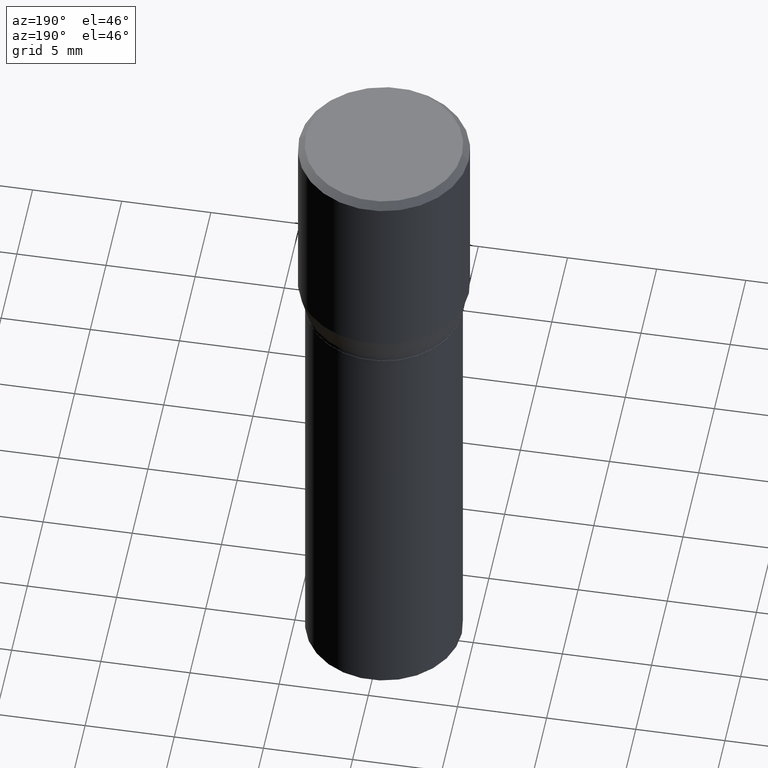
[diagram: clean part render]
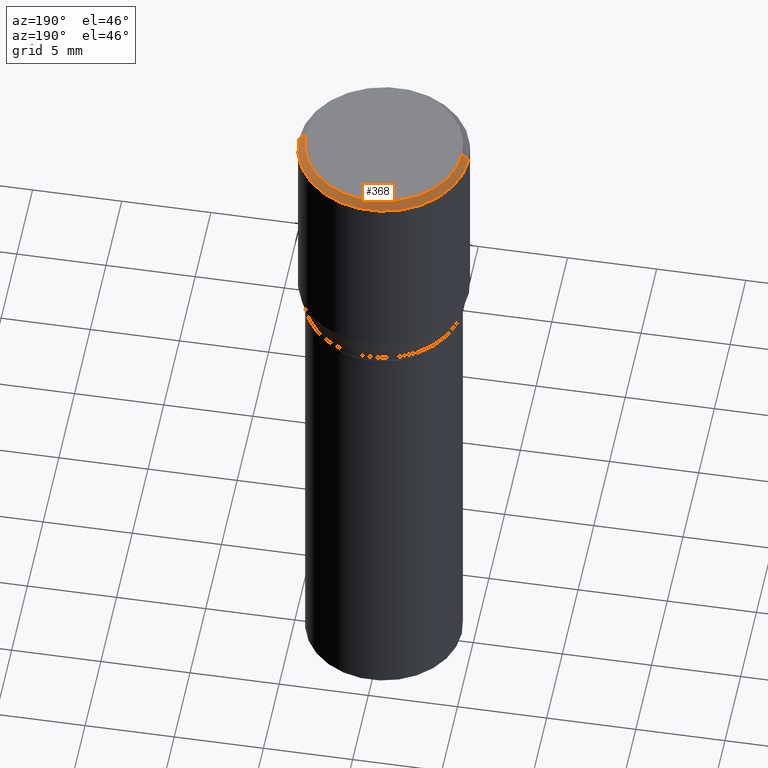
[diagram: same view with one face highlighted and labeled with its STEP entity id]
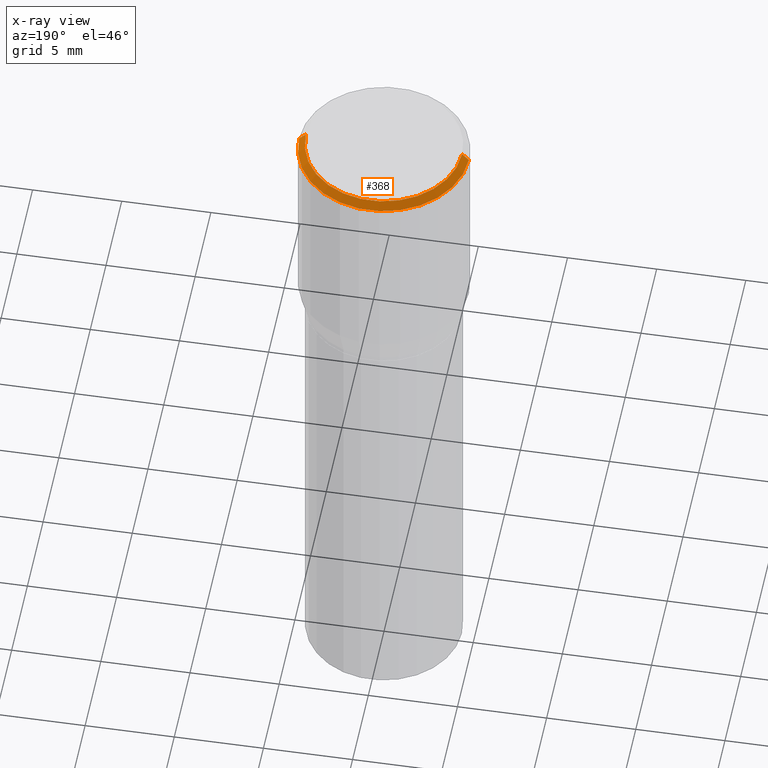
[diagram: x-ray of the same camera — body ghosted, the highlighted face saturated]
A machine part, auxiliary view. The second image highlights one B-rep face of the part: STEP entity #368.
The next image is the same camera in x-ray: the body ghosted, the highlighted face saturated — about 0% of this face is hidden behind the body in this view.
In plain terms, the highlighted conical surface has half-angle 45 deg.
Its self-contained STEP definition (entity closure, byte-faithful):
#55 = EDGE_CURVE ( 'NONE', #233, #293, #337, .T. ) ;
#79 = CARTESIAN_POINT ( 'NONE',  ( -0.1725000000000000144, 1.230747171942204192E-15, -2.636744989016075847E-17 ) ) ;
#99 = DIRECTION ( 'NONE',  ( -2.445468806185136597E-29, 3.491481338843145583E-15, 1.000000000000000000 ) ) ;
#105 = CARTESIAN_POINT ( 'NONE',  ( 0.1725000000000000144, -1.261075749640199308E-15, -2.636744989014362231E-17 ) ) ;
#106 = DIRECTION ( 'NONE',  ( 1.000000000000000000, -6.982962677686265922E-15, 0.000000000000000000 ) ) ;
#109 = LINE ( 'NONE', #250, #182 ) ;
#110 = EDGE_CURVE ( 'NONE', #233, #260, #135, .T. ) ;
#119 = DIRECTION ( 'NONE',  ( 0.7071067811865483499, -7.319954787623257623E-15, -0.7071067811865466846 ) ) ;
#135 = CIRCLE ( 'NONE', #141, 0.1725000000000000144 ) ;
#139 = CARTESIAN_POINT ( 'NONE',  ( 3.668203209277705088E-31, -5.237222008264718399E-17, -0.01499999999999999944 ) ) ;
#141 = AXIS2_PLACEMENT_3D ( 'NONE', #465, #99, #239 ) ;
#153 = EDGE_LOOP ( 'NONE', ( #238, #273, #447, #277 ) ) ;
#169 = CONICAL_SURFACE ( 'NONE', #276, 0.1875000000000000278, 0.7853981633974495002 ) ;
#182 = VECTOR ( 'NONE', #341, 39.37007874015748143 ) ;
#187 = DIRECTION ( 'NONE',  ( -1.000000000000000000, 6.982962677686265922E-15, 0.000000000000000000 ) ) ;
#216 = CARTESIAN_POINT ( 'NONE',  ( 3.668203209277705088E-31, -5.237222008264718399E-17, -0.01499999999999999944 ) ) ;
#233 = VERTEX_POINT ( 'NONE', #105 ) ;
#238 = ORIENTED_EDGE ( 'NONE', *, *, #110, .F. ) ;
#239 = DIRECTION ( 'NONE',  ( 1.000000000000000000, -6.982962677686266711E-15, 4.876912640186324808E-29 ) ) ;
#250 = CARTESIAN_POINT ( 'NONE',  ( -0.1875000000000000278, 1.256933281983527732E-15, -0.01499999999999999944 ) ) ;
#260 = VERTEX_POINT ( 'NONE', #79 ) ;
#265 = EDGE_CURVE ( 'NONE', #293, #323, #355, .T. ) ;
#273 = ORIENTED_EDGE ( 'NONE', *, *, #55, .T. ) ;
#276 = AXIS2_PLACEMENT_3D ( 'NONE', #216, #285, #187 ) ;
#277 = ORIENTED_EDGE ( 'NONE', *, *, #435, .F. ) ;
#280 = DIRECTION ( 'NONE',  ( -2.445468806185136597E-29, 3.491481338843145583E-15, 1.000000000000000000 ) ) ;
#285 = DIRECTION ( 'NONE',  ( 2.445468806185136597E-29, -3.491481338843145583E-15, -1.000000000000000000 ) ) ;
#293 = VERTEX_POINT ( 'NONE', #295 ) ;
#295 = CARTESIAN_POINT ( 'NONE',  ( 0.1875000000000000278, -1.361677722148822285E-15, -0.01499999999999999944 ) ) ;
#309 = AXIS2_PLACEMENT_3D ( 'NONE', #139, #280, #106 ) ;
#323 = VERTEX_POINT ( 'NONE', #444 ) ;
#332 = FACE_OUTER_BOUND ( 'NONE', #153, .T. ) ;
#337 = LINE ( 'NONE', #423, #454 ) ;
#341 = DIRECTION ( 'NONE',  ( -0.7071067811865483499, 2.468850131082265738E-15, -0.7071067811865466846 ) ) ;
#355 = CIRCLE ( 'NONE', #309, 0.1875000000000000278 ) ;
#368 = ADVANCED_FACE ( 'NONE', ( #332 ), #169, .T. ) ;
#423 = CARTESIAN_POINT ( 'NONE',  ( 0.1875000000000000278, -1.338715594664809642E-15, -0.01499999999999999944 ) ) ;
#435 = EDGE_CURVE ( 'NONE', #260, #323, #109, .T. ) ;
#444 = CARTESIAN_POINT ( 'NONE',  ( -0.1875000000000000278, 5.523056003441748841E-16, -0.01499999999999999944 ) ) ;
#447 = ORIENTED_EDGE ( 'NONE', *, *, #265, .T. ) ;
#454 = VECTOR ( 'NONE', #119, 39.37007874015748143 ) ;
#465 = CARTESIAN_POINT ( 'NONE',  ( 6.448077620501702025E-46, -9.206145924434830208E-32, -2.636744989015224123E-17 ) ) ;